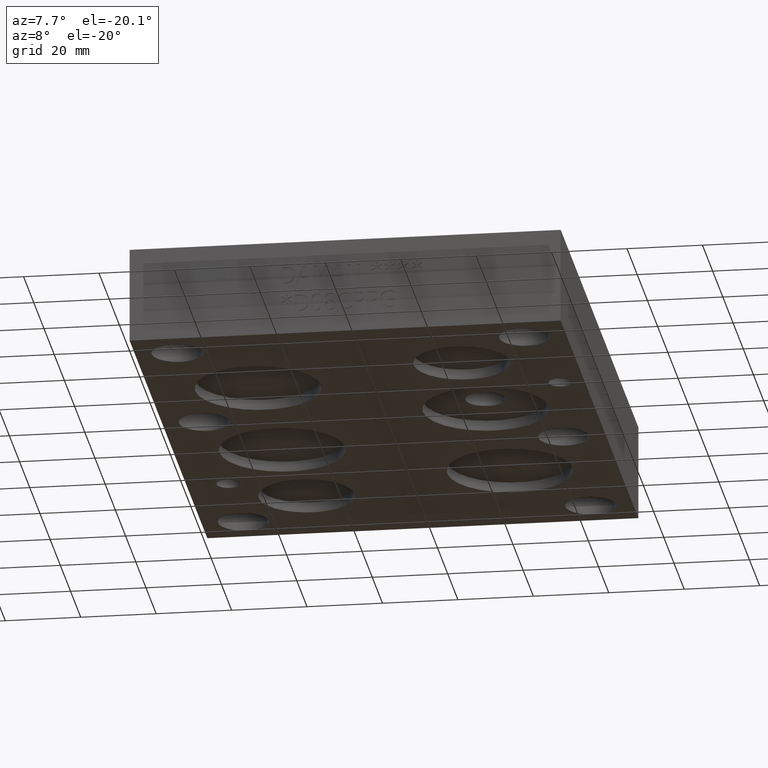
[diagram: clean part render]
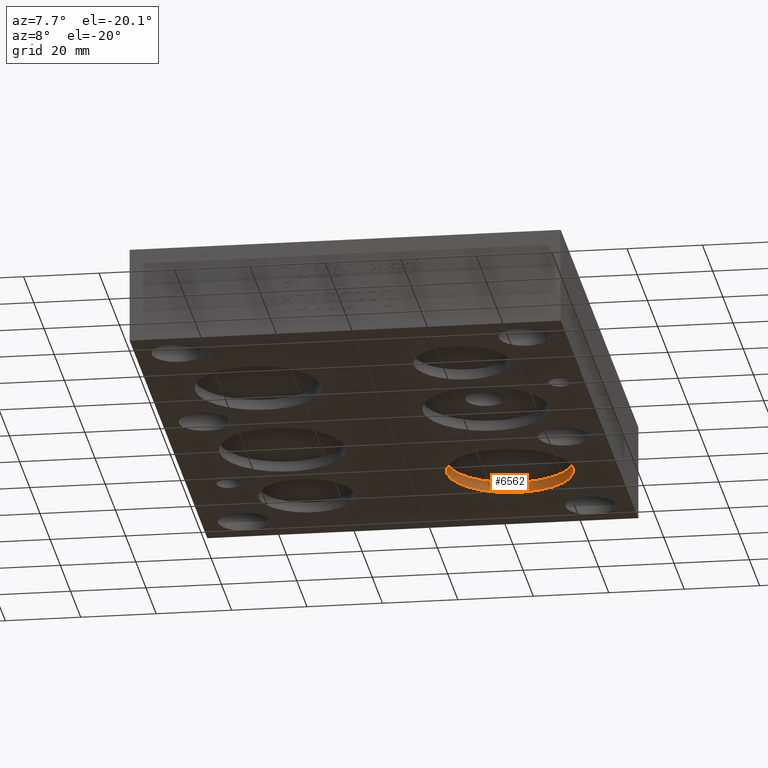
[diagram: same view with one face highlighted and labeled with its STEP entity id]
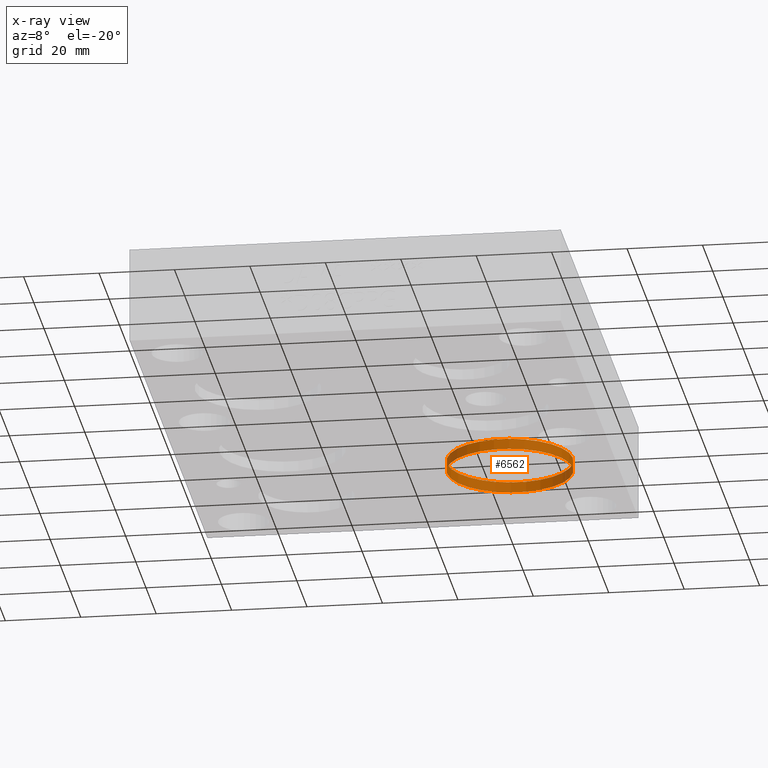
[diagram: x-ray of the same camera — body ghosted, the highlighted face saturated]
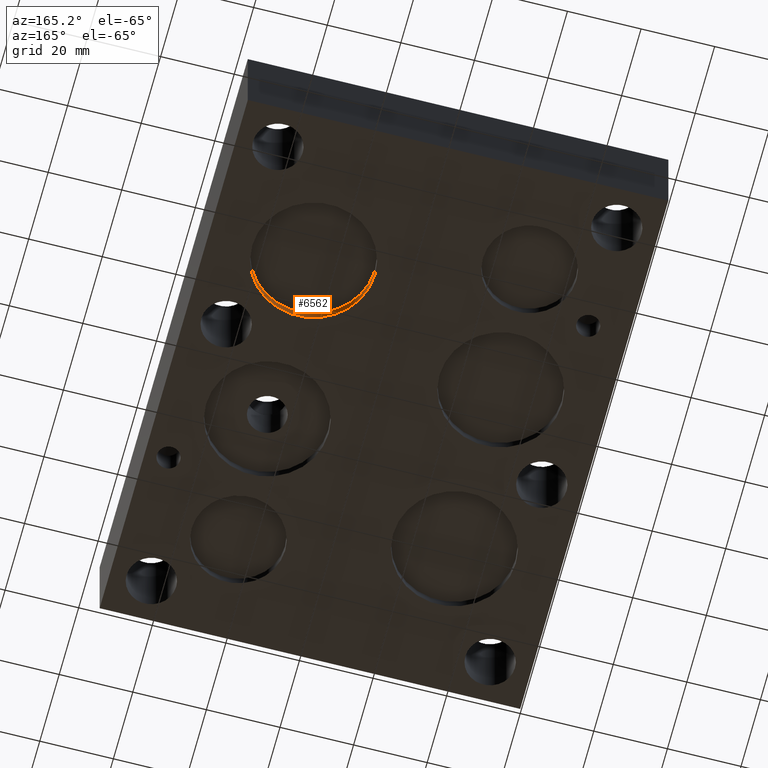
[diagram: same view with one face highlighted and labeled with its STEP entity id]
A machine part, auxiliary view. The second image highlights one B-rep face of the part: STEP entity #6562.
The next image is the same camera in x-ray: the body ghosted, the highlighted face saturated — about 0% of this face is hidden behind the body in this view.
A second angle (auxiliary view) of the same face is appended — the face is thin or edge-on in the first view.
In plain terms, the highlighted cylindrical surface (bore or boss wall) has radius 16.6751 mm, axis along (0, 0, -1).
Its self-contained STEP definition (entity closure, byte-faithful):
#23=CYLINDRICAL_SURFACE('',#6856,0.6565);
#62=CIRCLE('',#6854,0.6565);
#63=CIRCLE('',#6855,0.6565);
#64=CIRCLE('',#6857,0.6565);
#65=CIRCLE('',#6858,0.6565);
#567=FACE_OUTER_BOUND('',#947,.T.);
#947=EDGE_LOOP('',(#5889,#5890,#5891,#5892,#5893,#5894));
#1647=LINE('',#11636,#2330);
#2330=VECTOR('',#8081,0.6565);
#3154=VERTEX_POINT('',#11630);
#3155=VERTEX_POINT('',#11631);
#3156=VERTEX_POINT('',#11635);
#3157=VERTEX_POINT('',#11637);
#4083=EDGE_CURVE('',#3154,#3155,#62,.T.);
#4084=EDGE_CURVE('',#3155,#3154,#63,.T.);
#4085=EDGE_CURVE('',#3155,#3156,#1647,.T.);
#4086=EDGE_CURVE('',#3157,#3156,#64,.T.);
#4087=EDGE_CURVE('',#3156,#3157,#65,.T.);
#5889=ORIENTED_EDGE('',*,*,#4083,.F.);
#5890=ORIENTED_EDGE('',*,*,#4084,.F.);
#5891=ORIENTED_EDGE('',*,*,#4085,.T.);
#5892=ORIENTED_EDGE('',*,*,#4086,.F.);
#5893=ORIENTED_EDGE('',*,*,#4087,.F.);
#5894=ORIENTED_EDGE('',*,*,#4085,.F.);
#6562=ADVANCED_FACE('',(#567),#23,.F.);
#6854=AXIS2_PLACEMENT_3D('',#11632,#8075,#8076);
#6855=AXIS2_PLACEMENT_3D('',#11633,#8077,#8078);
#6856=AXIS2_PLACEMENT_3D('',#11634,#8079,#8080);
#6857=AXIS2_PLACEMENT_3D('',#11638,#8082,#8083);
#6858=AXIS2_PLACEMENT_3D('',#11639,#8084,#8085);
#8075=DIRECTION('center_axis',(0.,0.,-1.));
#8076=DIRECTION('ref_axis',(1.,0.,0.));
#8077=DIRECTION('center_axis',(0.,0.,-1.));
#8078=DIRECTION('ref_axis',(1.,0.,0.));
#8079=DIRECTION('center_axis',(0.,0.,-1.));
#8080=DIRECTION('ref_axis',(1.,0.,0.));
#8081=DIRECTION('',(0.,0.,-1.));
#8082=DIRECTION('center_axis',(0.,0.,1.));
#8083=DIRECTION('ref_axis',(1.,0.,0.));
#8084=DIRECTION('center_axis',(0.,0.,1.));
#8085=DIRECTION('ref_axis',(1.,0.,0.));
#11630=CARTESIAN_POINT('',(4.0315,4.406,0.11));
#11631=CARTESIAN_POINT('',(2.7185,4.406,0.11));
#11632=CARTESIAN_POINT('Origin',(3.375,4.406,0.11));
#11633=CARTESIAN_POINT('Origin',(3.375,4.406,0.11));
#11634=CARTESIAN_POINT('Origin',(3.375,4.406,0.055));
#11635=CARTESIAN_POINT('',(2.7185,4.406,0.));
#11636=CARTESIAN_POINT('',(2.7185,4.406,0.055));
#11637=CARTESIAN_POINT('',(4.0315,4.406,0.));
#11638=CARTESIAN_POINT('Origin',(3.375,4.406,0.));
#11639=CARTESIAN_POINT('Origin',(3.375,4.406,0.));